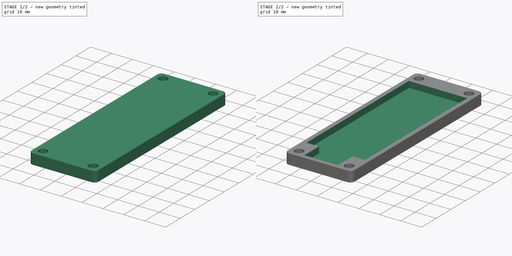
[diagram: build sequence overview — one tinted view per stage of 2, left to right]
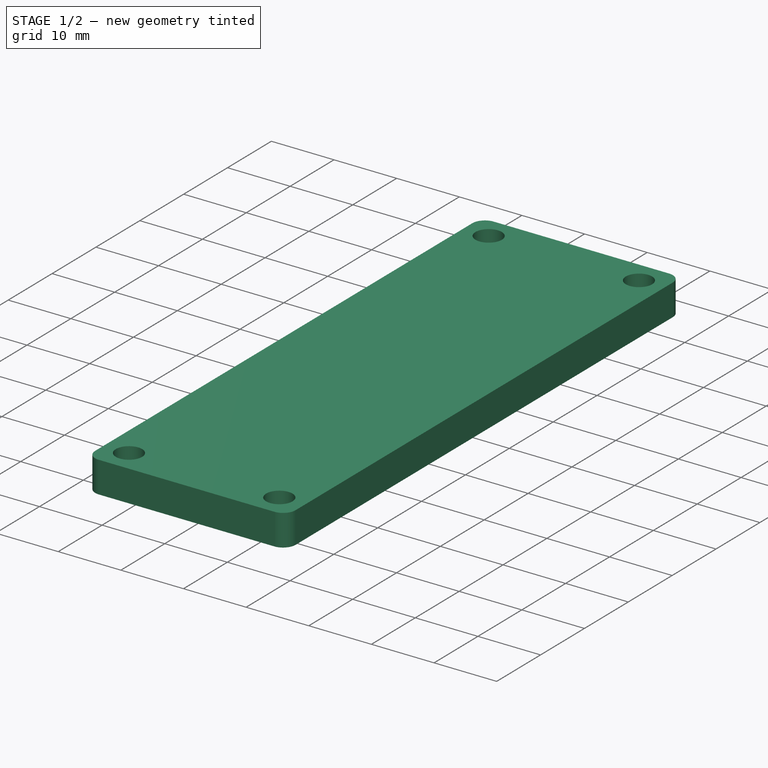
[diagram: stage 1 of 2 — iso view after this stage's code; geometry added in this stage tinted green]
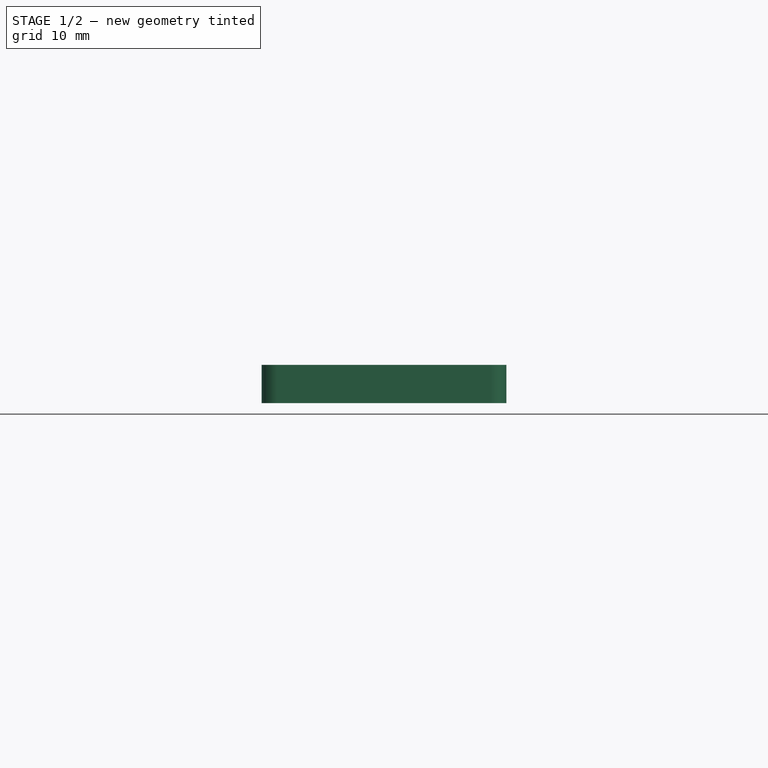
[diagram: stage 1 of 2 — front view after this stage's code; geometry added in this stage tinted green]
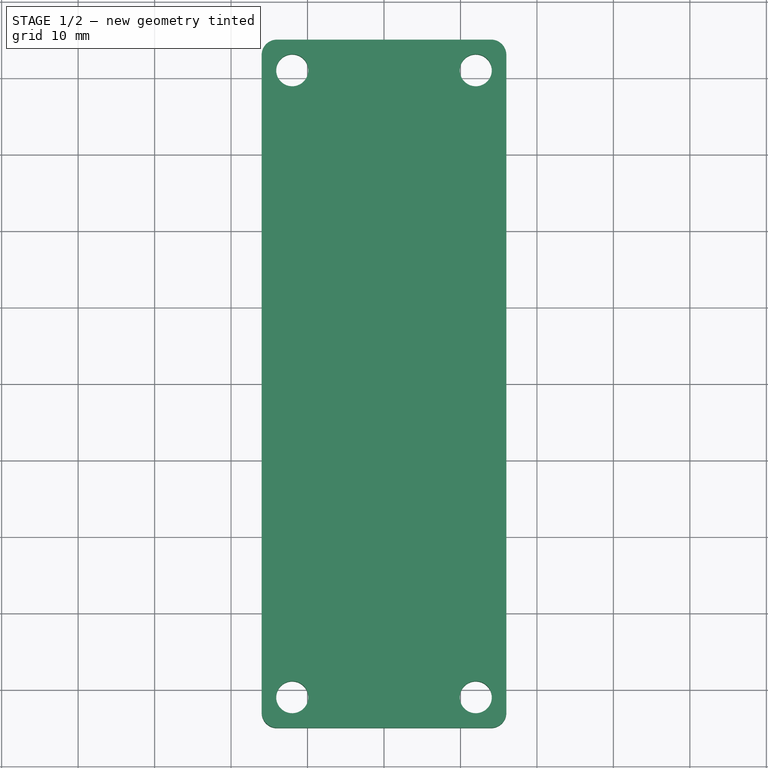
[diagram: stage 1 of 2 — top view after this stage's code; geometry added in this stage tinted green]
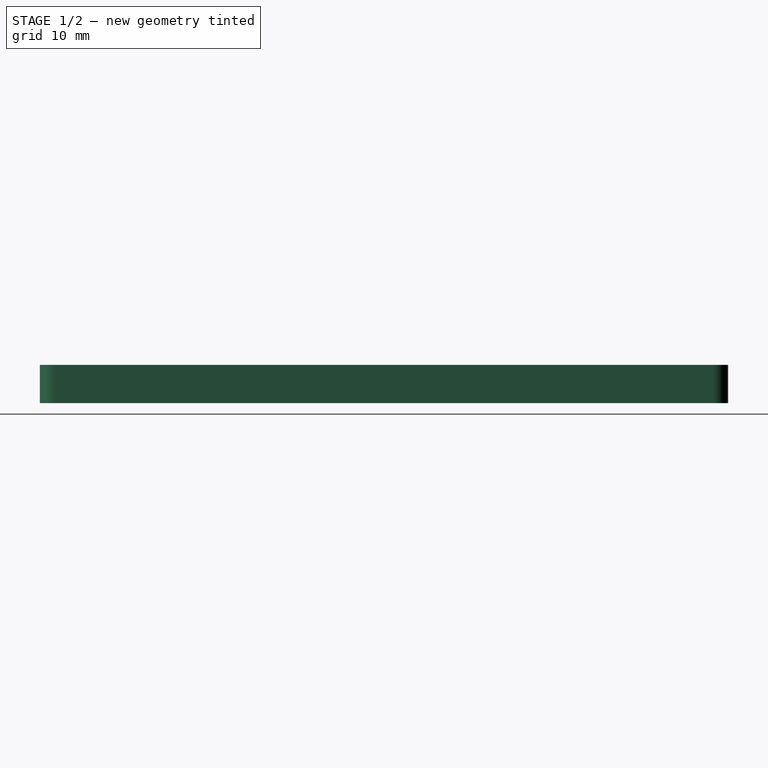
[diagram: stage 1 of 2 — right view after this stage's code; geometry added in this stage tinted green]
FCSTD DOCUMENT  (FreeCAD 0.20R29177 +426 (Git))
Label: bottom_26650_case
License: All rights reserved
LicenseURL: http://en.wikipedia.org/wiki/All_rights_reserved
objects: Sketcher::SketchObject×2, Part::Extrusion×2, Part::Fillet×1, Part::Cut×1
note: 6 computed .brp shape members not serialized (recipe doc carries the construction recipe); baked Part::Feature solids carry a one-line shape summary decoded from their .brp

FEATURE [Sketcher::SketchObject] Sketch
  FullyConstrained = true
  sketch-geometry (8):
    g0: LineSegment StartX=-16 StartY=45 StartZ=0 EndX=16 EndY=45 EndZ=0
    g1: LineSegment StartX=16 StartY=45 StartZ=0 EndX=16 EndY=-45 EndZ=0
    g2: LineSegment StartX=16 StartY=-45 StartZ=0 EndX=-16 EndY=-45 EndZ=0
    g3: LineSegment StartX=-16 StartY=-45 StartZ=0 EndX=-16 EndY=45 EndZ=0
    g4: Circle CenterX=-12 CenterY=41 CenterZ=0 NormalX=0 NormalY=0 NormalZ=1 AngleXU=0 Radius=2.1
    g5: Circle CenterX=12 CenterY=41 CenterZ=0 NormalX=0 NormalY=0 NormalZ=1 AngleXU=0 Radius=2.1
    g6: Circle CenterX=-12 CenterY=-41 CenterZ=0 NormalX=0 NormalY=0 NormalZ=1 AngleXU=0 Radius=2.1
    g7: Circle CenterX=12 CenterY=-41 CenterZ=0 NormalX=0 NormalY=0 NormalZ=1 AngleXU=0 Radius=2.1
  constraints (23):
    c: Coincident(g0,g1)
    c: Coincident(g1,g2)
    c: Coincident(g2,g3)
    c: Coincident(g3,g0)
    c: Horizontal(g0)
    c: Horizontal(g2)
    c: Vertical(g1)
    c: Vertical(g3)
    c: DistanceY(g6,g4) = 82
    c: DistanceY(g7,g6) = 0
    c: DistanceY(g4,g5) = 0
    c: DistanceX(g4,g5) = 24
    c: DistanceX(g5,g7) = 0
    c: DistanceX(g6,g4) = 0
    c: Diameter(g5) = 4.2
    c: Equal(g5,g4)
    c: Equal(g7,g5)
    c: Equal(g7,g6)
    c: DistanceX(g0,g0) = 32
    c: DistanceY(g1,g1) = 90
    c: DistanceY(g4,g0) = 4
    c: DistanceX(g0,g4) = 4
    c: Symmetric(g0,g1,g-1)
FEATURE [Part::Extrusion] Extrude
  Base = -> Sketch
  Dir = (0,0,1)
  DirMode = 2
  FaceMakerClass = Part::FaceMakerBullseye
  LengthFwd = 5
  LengthRev = 0
  Solid = true
  Symmetric = false
FEATURE [Part::Fillet] Fillet
  Base = -> Extrude
  Edges = 4 edges r=2: [Edge1,Edge2,Edge5,Edge8]
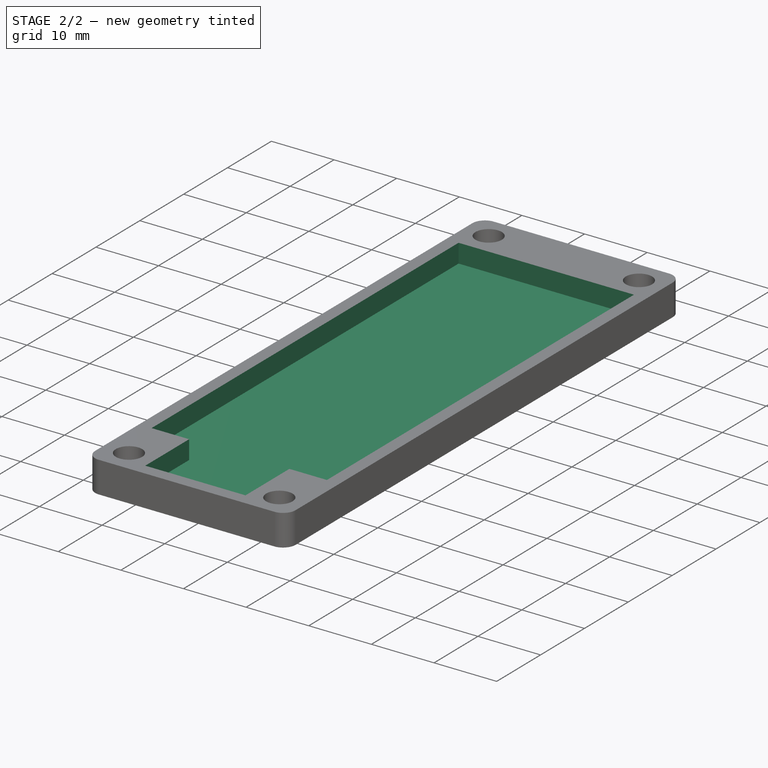
[diagram: stage 2 of 2 — iso view after this stage's code; geometry added in this stage tinted green]
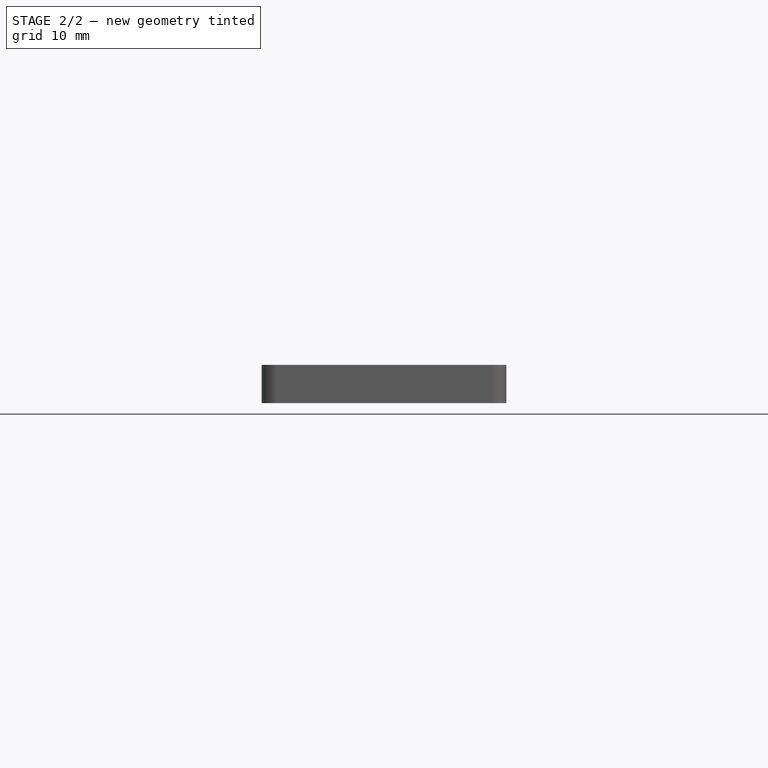
[diagram: stage 2 of 2 — front view after this stage's code; geometry added in this stage tinted green]
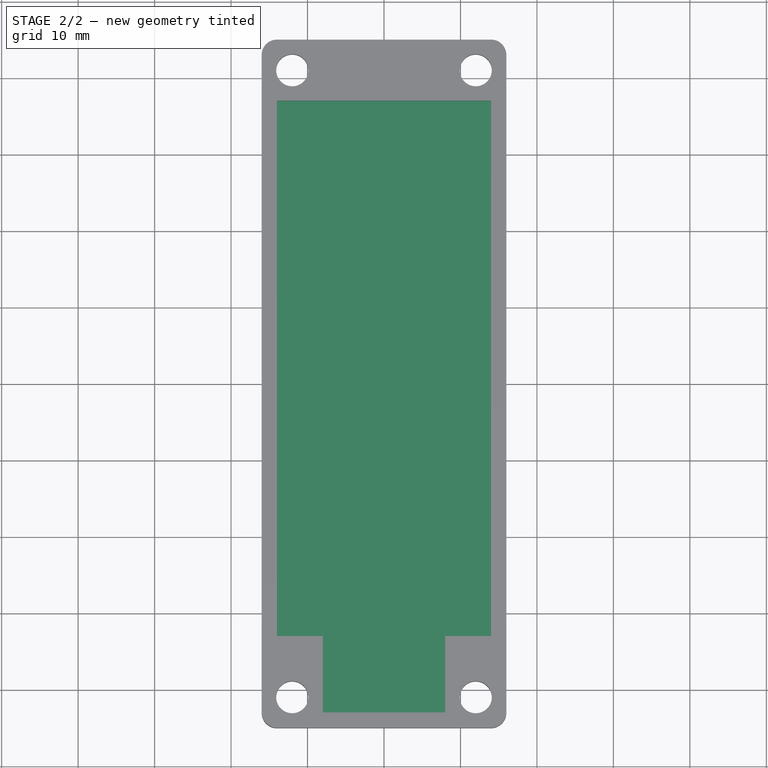
[diagram: stage 2 of 2 — top view after this stage's code; geometry added in this stage tinted green]
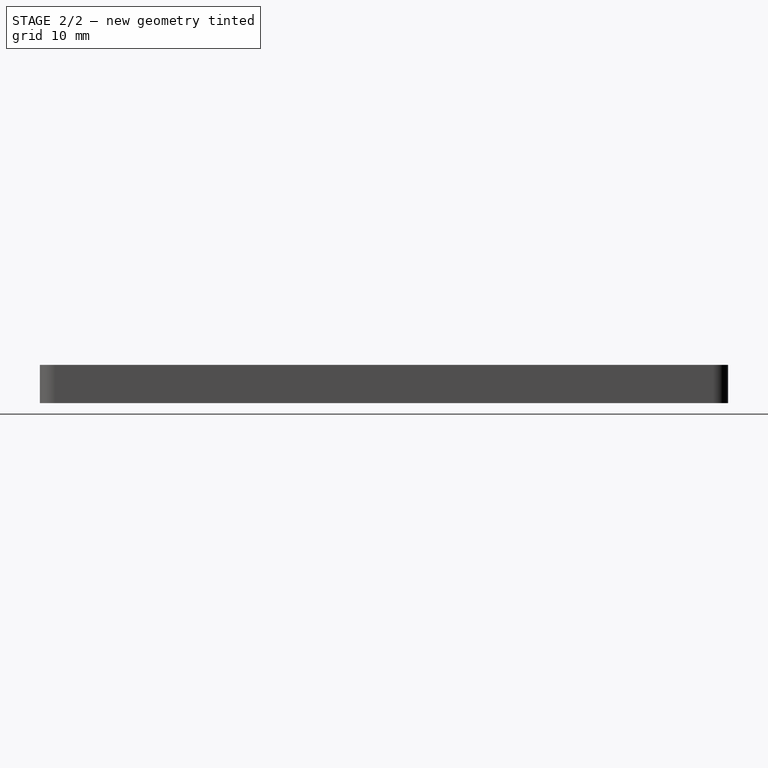
[diagram: stage 2 of 2 — right view after this stage's code; geometry added in this stage tinted green]
FEATURE [Sketcher::SketchObject] Sketch001
  ExternalGeometry = -> [Fillet]
  FullyConstrained = false
  MapMode = 5
  Placement = pos=(0,0,5) rot=(0,0,1;0rad)
  Support = -> [Fillet]
  sketch-geometry (8):
    g0: LineSegment StartX=14 StartY=37 StartZ=0 EndX=14 EndY=-33 EndZ=0
    g1: LineSegment StartX=14 StartY=-33 StartZ=0 EndX=8 EndY=-33 EndZ=0
    g2: LineSegment StartX=-14 StartY=-33 StartZ=0 EndX=-14 EndY=37 EndZ=0
    g3: LineSegment StartX=8 StartY=-33 StartZ=0 EndX=8 EndY=-43 EndZ=0
    g4: LineSegment StartX=8 StartY=-43 StartZ=0 EndX=-8 EndY=-43 EndZ=0
    g5: LineSegment StartX=-8 StartY=-43 StartZ=0 EndX=-8 EndY=-33 EndZ=0
    g6: LineSegment StartX=-14 StartY=37 StartZ=0 EndX=14 EndY=37 EndZ=0
    g7: LineSegment StartX=-8 StartY=-33 StartZ=0 EndX=-14 EndY=-33 EndZ=0
  constraints (20):
    c: Coincident(g0,g1)
    c: Coincident(g7,g2)
    c: Horizontal(g1)
    c: Vertical(g0)
    c: Vertical(g2)
    c: Coincident(g3,g4)
    c: Coincident(g4,g5)
    c: Horizontal(g4)
    c: Vertical(g3)
    c: Vertical(g5)
    c: DistanceX(g-3,g2) = 2
    c: DistanceX(g0,g-4) = 2
    c: DistanceY(g-3,g7) = 10
    c: DistanceY(g2,g-3) = 6
    c: Coincident(g6,g2)
    c: Coincident(g6,g0)
    c: Horizontal(g6)
    c: DistanceX(g-3,g5) = 8
    c: DistanceX(g3,g-4) = 8
    c: DistanceY(g-5,g4) = 2
FEATURE [Part::Extrusion] Extrude001
  Base = -> Sketch001
  Dir = (0,0,1)
  DirMode = 2
  FaceMakerClass = Part::FaceMakerBullseye
  LengthFwd = 3
  LengthRev = 0
  Reversed = true
  Solid = true
  Symmetric = false
FEATURE [Part::Cut] Cut
  Base = -> Fillet
  Tool = -> Extrude001
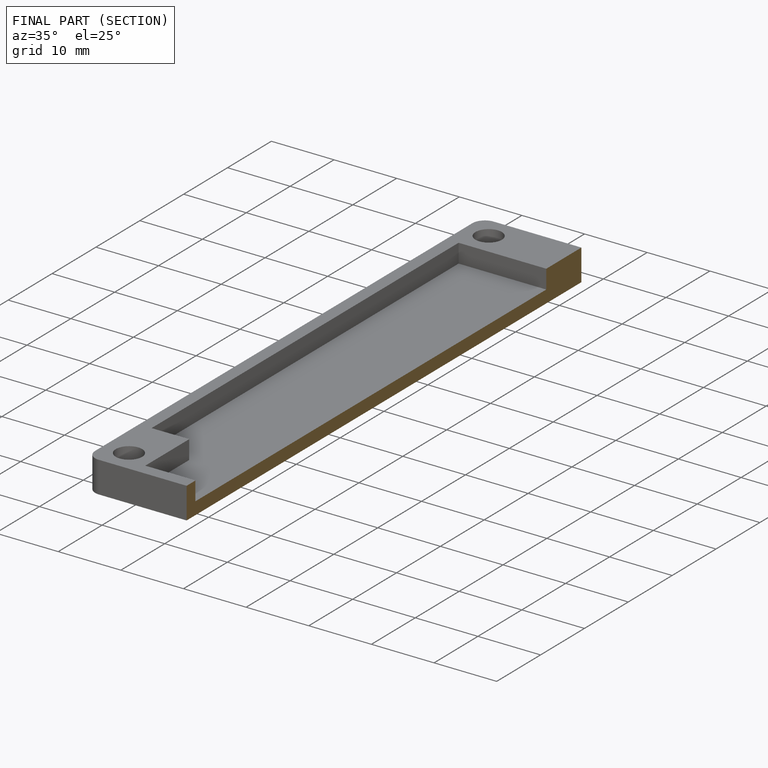
[diagram: finished part — half-section view (interior)]
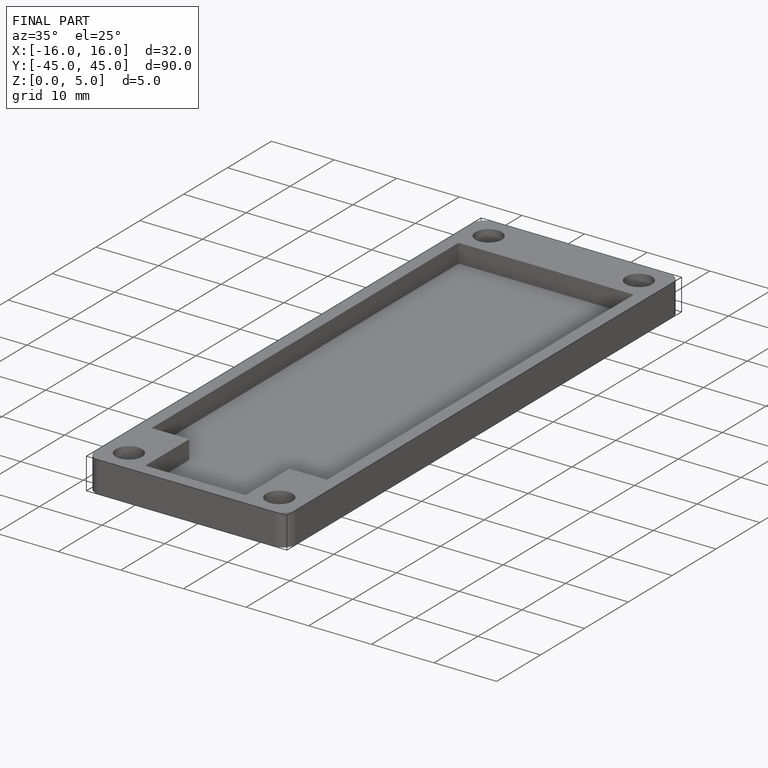
[diagram: finished part — iso view with bounding-box wireframe]
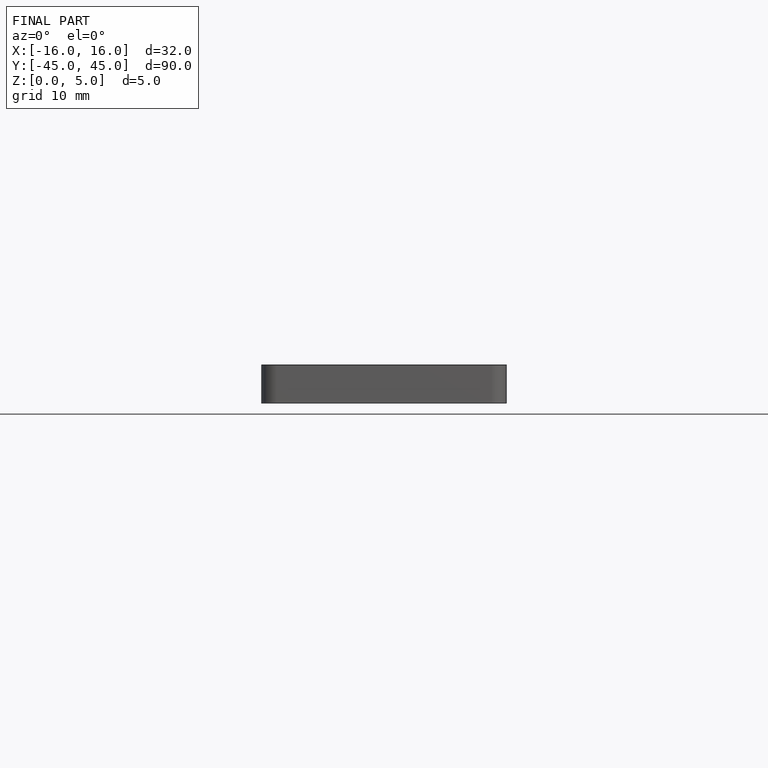
[diagram: finished part — front view with bounding-box wireframe]
